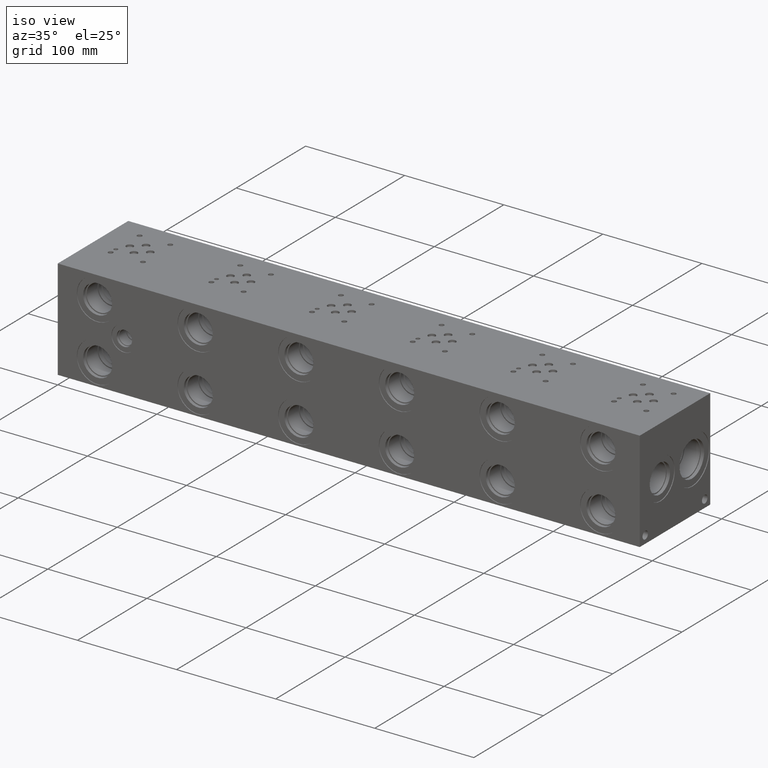
[diagram: clean part render]
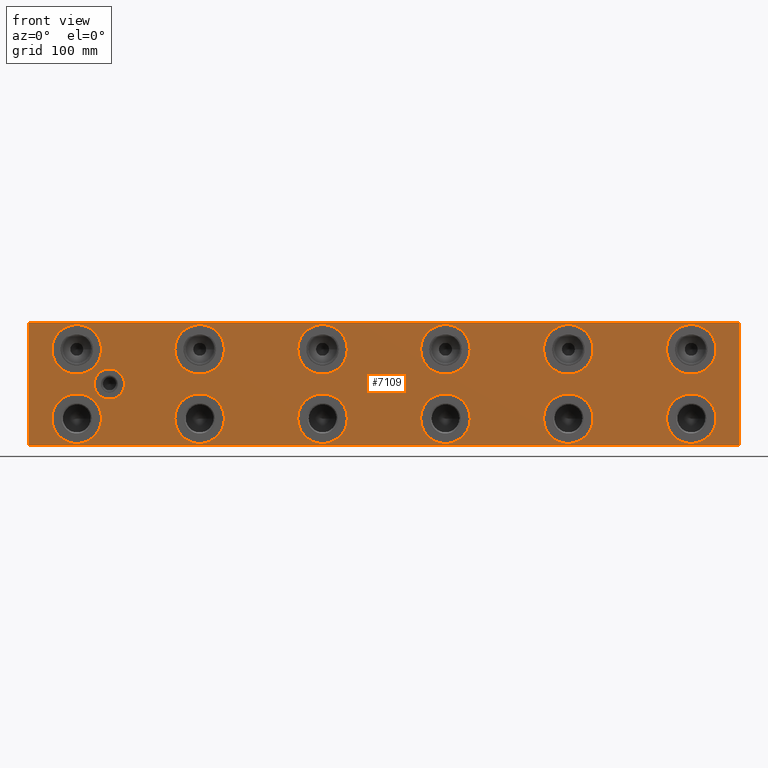
[diagram: tour spotlight — one face highlighted and labeled with its STEP entity id]
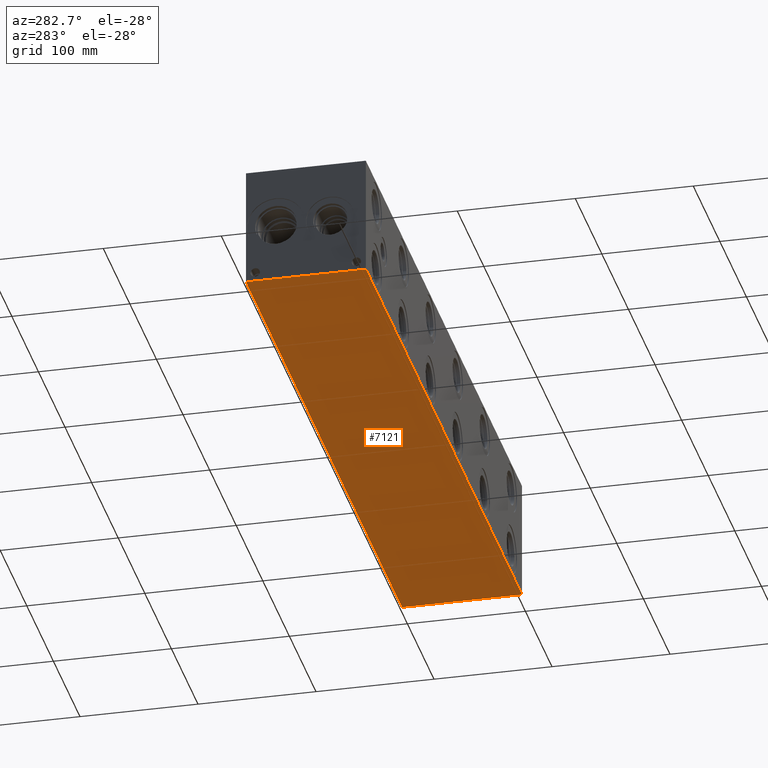
[diagram: tour spotlight — one face highlighted and labeled with its STEP entity id]
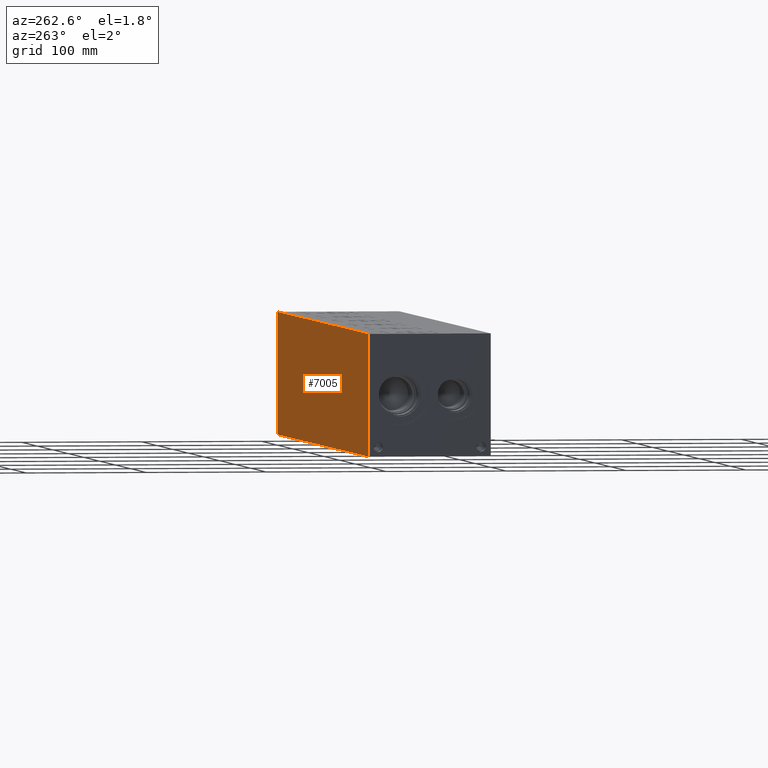
[diagram: tour spotlight — one face highlighted and labeled with its STEP entity id]
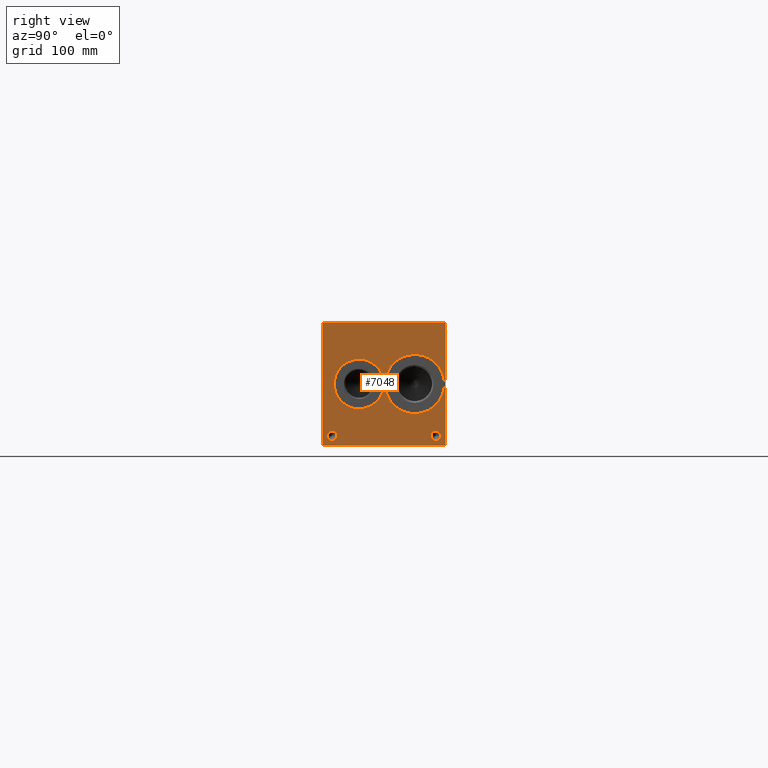
[diagram: tour spotlight — one face highlighted and labeled with its STEP entity id]
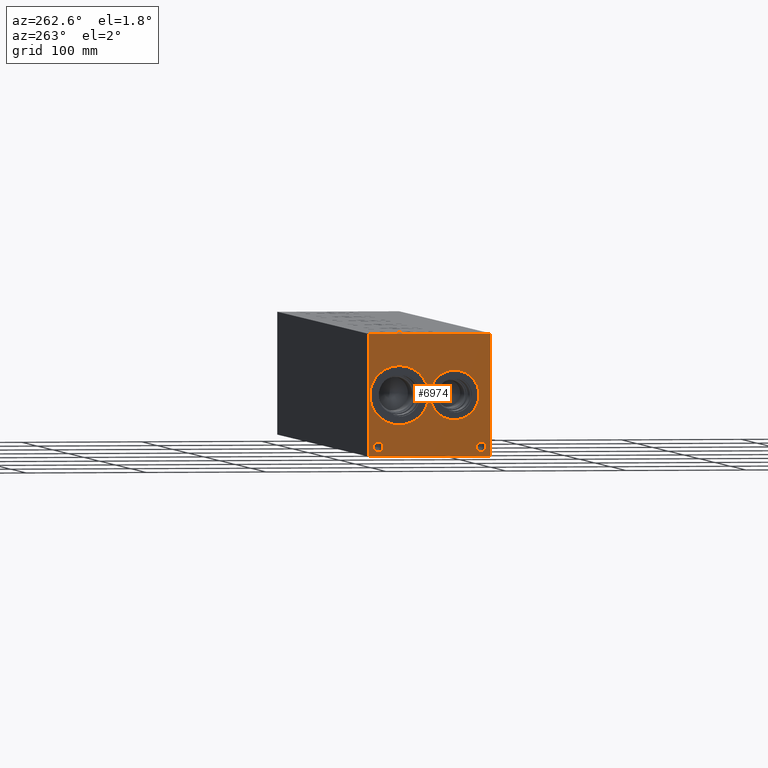
[diagram: tour spotlight — one face highlighted and labeled with its STEP entity id]
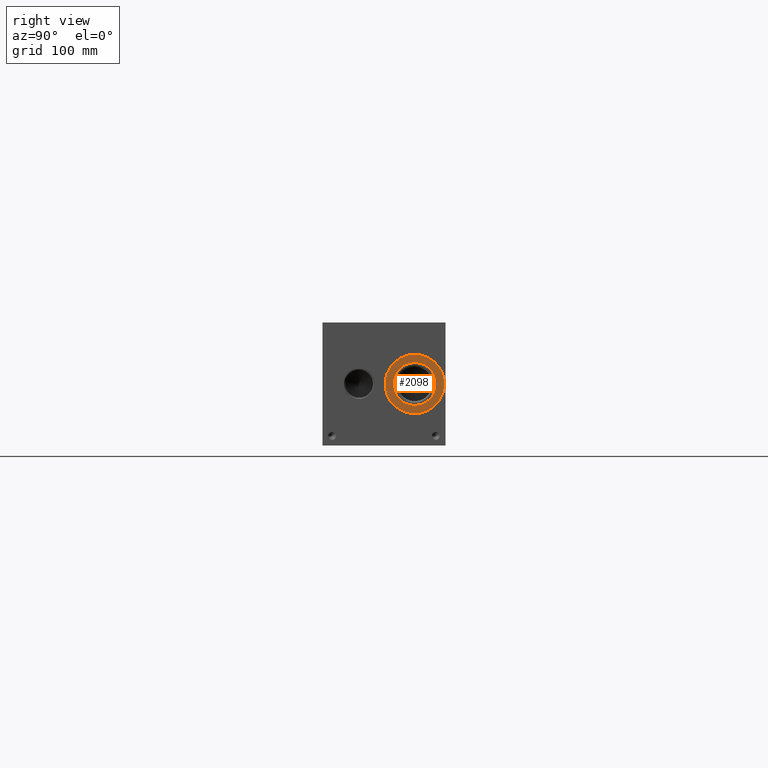
[diagram: tour spotlight — one face highlighted and labeled with its STEP entity id]
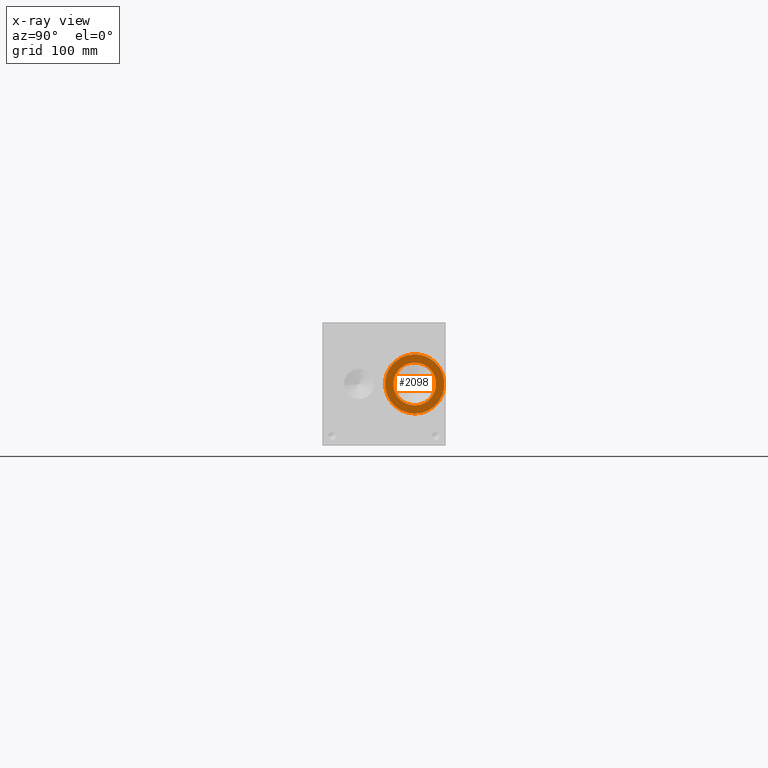
[diagram: x-ray of the same camera — body ghosted, this tour face saturated]
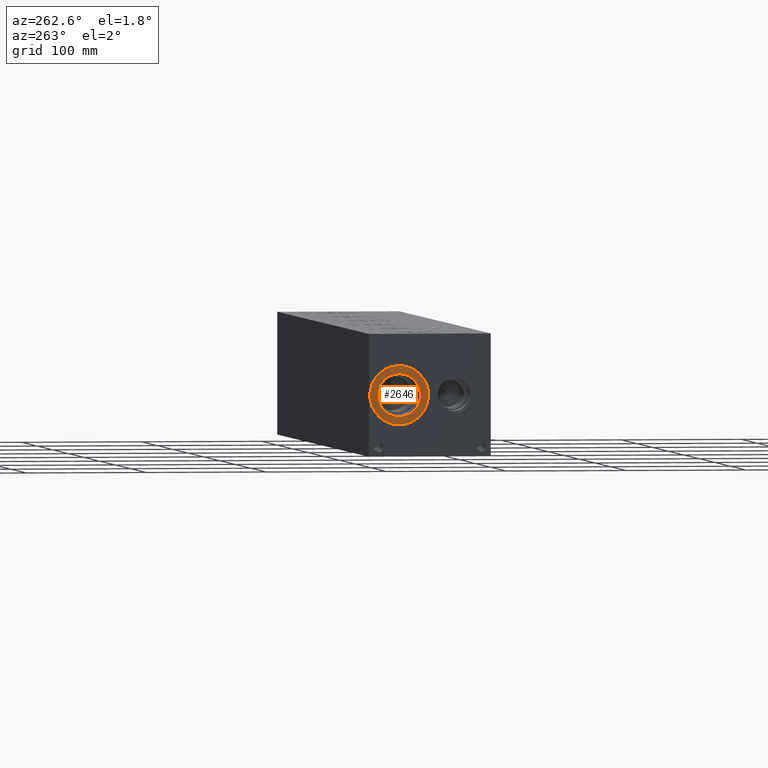
[diagram: tour spotlight — one face highlighted and labeled with its STEP entity id]
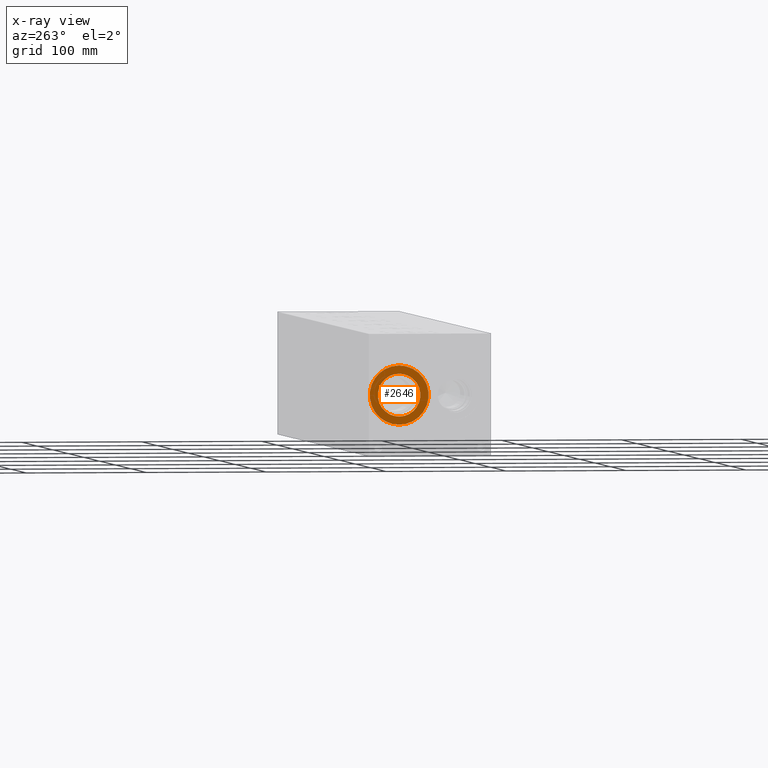
[diagram: x-ray of the same camera — body ghosted, this tour face saturated]
A machine part: a face-by-face anatomy tour. The part has 360 B-rep faces; the first image is the clean iso view, then the 7 largest visible faces are spotlighted one at a time (largest first), each with its STEP entity span.

Face 1 — front view, entity #7109. In plain terms, the highlighted planar face has unit normal (0, -1, 0).
Definition (entity closure, byte-faithful):
#250=CARTESIAN_POINT('',(568.1726000000001,0.0,22.225000000000001));
#251=VERTEX_POINT('',#250);
#252=CARTESIAN_POINT('',(547.6748,0.0,22.225000000000001));
#253=DIRECTION('',(0.0,1.0,0.0));
#254=DIRECTION('',(1.0,0.0,0.0));
#255=AXIS2_PLACEMENT_3D('',#252,#253,#254);
#256=CIRCLE('',#255,20.497799999999984);
#257=EDGE_CURVE('',#251,#251,#256,.T.);
#487=CARTESIAN_POINT('',(568.1726000000001,0.0,79.375));
#488=VERTEX_POINT('',#487);
#489=CARTESIAN_POINT('',(547.6748,0.0,79.375));
#490=DIRECTION('',(0.0,1.0,0.0));
#491=DIRECTION('',(1.0,0.0,0.0));
#492=AXIS2_PLACEMENT_3D('',#489,#490,#491);
#493=CIRCLE('',#492,20.497799999999984);
#494=EDGE_CURVE('',#488,#488,#493,.T.);
#1177=CARTESIAN_POINT('',(466.57260000000002,0.0,22.225000000000001));
#1178=VERTEX_POINT('',#1177);
#1179=CARTESIAN_POINT('',(446.07480000000004,0.0,22.225000000000001));
#1180=DIRECTION('',(0.0,1.0,0.0));
#1181=DIRECTION('',(1.0,0.0,0.0));
#1182=AXIS2_PLACEMENT_3D('',#1179,#1180,#1181);
#1183=CIRCLE('',#1182,20.497799999999984);
#1184=EDGE_CURVE('',#1178,#1178,#1183,.T.);
#1414=CARTESIAN_POINT('',(466.57260000000002,0.0,79.375));
#1415=VERTEX_POINT('',#1414);
#1416=CARTESIAN_POINT('',(446.07480000000004,0.0,79.375));
#1417=DIRECTION('',(0.0,1.0,0.0));
#1418=DIRECTION('',(1.0,0.0,0.0));
#1419=AXIS2_PLACEMENT_3D('',#1416,#1417,#1418);
#1420=CIRCLE('',#1419,20.497799999999984);
#1421=EDGE_CURVE('',#1415,#1415,#1420,.T.);
#3200=CARTESIAN_POINT('',(364.97260000000006,0.0,22.225000000000001));
#3201=VERTEX_POINT('',#3200);
#3202=CARTESIAN_POINT('',(344.47480000000007,0.0,22.225000000000001));
#3203=DIRECTION('',(0.0,1.0,0.0));
#3204=DIRECTION('',(1.0,0.0,0.0));
#3205=AXIS2_PLACEMENT_3D('',#3202,#3203,#3204);
#3206=CIRCLE('',#3205,20.497799999999984);
#3207=EDGE_CURVE('',#3201,#3201,#3206,.T.);
#3397=CARTESIAN_POINT('',(263.37260000000003,0.0,22.225000000000001));
#3398=VERTEX_POINT('',#3397);
#3399=CARTESIAN_POINT('',(242.87480000000002,0.0,22.225000000000001));
#3400=DIRECTION('',(0.0,1.0,0.0));
#3401=DIRECTION('',(1.0,0.0,0.0));
#3402=AXIS2_PLACEMENT_3D('',#3399,#3400,#3401);
#3403=CIRCLE('',#3402,20.497799999999984);
#3404=EDGE_CURVE('',#3398,#3398,#3403,.T.);
#3594=CARTESIAN_POINT('',(161.77260000000001,0.0,22.225000000000001));
#3595=VERTEX_POINT('',#3594);
#3596=CARTESIAN_POINT('',(141.2748,0.0,22.225000000000001));
#3597=DIRECTION('',(0.0,1.0,0.0));
#3598=DIRECTION('',(1.0,0.0,0.0));
#3599=AXIS2_PLACEMENT_3D('',#3596,#3597,#3598);
#3600=CIRCLE('',#3599,20.497800000000002);
#3601=EDGE_CURVE('',#3595,#3595,#3600,.T.);
#3791=CARTESIAN_POINT('',(60.172600000000003,0.0,22.225000000000001));
#3792=VERTEX_POINT('',#3791);
#3793=CARTESIAN_POINT('',(39.674800000000005,0.0,22.225000000000001));
#3794=DIRECTION('',(0.0,1.0,0.0));
#3795=DIRECTION('',(1.0,0.0,0.0));
#3796=AXIS2_PLACEMENT_3D('',#3793,#3794,#3795);
#3797=CIRCLE('',#3796,20.497800000000002);
#3798=EDGE_CURVE('',#3792,#3792,#3797,.T.);
#4028=CARTESIAN_POINT('',(364.97260000000006,0.0,79.375));
#4029=VERTEX_POINT('',#4028);
#4030=CARTESIAN_POINT('',(344.47480000000007,0.0,79.375));
#4031=DIRECTION('',(0.0,1.0,0.0));
#4032=DIRECTION('',(1.0,0.0,0.0));
#4033=AXIS2_PLACEMENT_3D('',#4030,#4031,#4032);
#4034=CIRCLE('',#4033,20.497799999999984);
#4035=EDGE_CURVE('',#4029,#4029,#4034,.T.);
#4265=CARTESIAN_POINT('',(263.37260000000003,0.0,79.375));
#4266=VERTEX_POINT('',#4265);
#4267=CARTESIAN_POINT('',(242.87480000000002,0.0,79.375));
#4268=DIRECTION('',(0.0,1.0,0.0));
#4269=DIRECTION('',(1.0,0.0,0.0));
#4270=AXIS2_PLACEMENT_3D('',#4267,#4268,#4269);
#4271=CIRCLE('',#4270,20.497799999999984);
#4272=EDGE_CURVE('',#4266,#4266,#4271,.T.);
#4502=CARTESIAN_POINT('',(161.77260000000001,0.0,79.375));
#4503=VERTEX_POINT('',#4502);
#4504=CARTESIAN_POINT('',(141.2748,0.0,79.375));
#4505=DIRECTION('',(0.0,1.0,0.0));
#4506=DIRECTION('',(1.0,0.0,0.0));
#4507=AXIS2_PLACEMENT_3D('',#4504,#4505,#4506);
#4508=CIRCLE('',#4507,20.497800000000002);
#4509=EDGE_CURVE('',#4503,#4503,#4508,.T.);
#4699=CARTESIAN_POINT('',(79.171800000000005,0.0,50.799999999999997));
#4700=VERTEX_POINT('',#4699);
#4701=CARTESIAN_POINT('',(66.675000000000011,0.0,50.799999999999997));
#4702=DIRECTION('',(0.0,1.0,0.0));
#4703=DIRECTION('',(1.0,0.0,0.0));
#4704=AXIS2_PLACEMENT_3D('',#4701,#4702,#4703);
#4705=CIRCLE('',#4704,12.496799999999997);
#4706=EDGE_CURVE('',#4700,#4700,#4705,.T.);
#4936=CARTESIAN_POINT('',(60.172600000000003,0.0,79.375));
#4937=VERTEX_POINT('',#4936);
#4938=CARTESIAN_POINT('',(39.674800000000005,0.0,79.375));
#4939=DIRECTION('',(0.0,1.0,0.0));
#4940=DIRECTION('',(1.0,0.0,0.0));
#4941=AXIS2_PLACEMENT_3D('',#4938,#4939,#4940);
#4942=CIRCLE('',#4941,20.497800000000002);
#4943=EDGE_CURVE('',#4937,#4937,#4942,.T.);
#6928=CARTESIAN_POINT('',(0.0,0.0,101.59999999999999));
#6929=VERTEX_POINT('',#6928);
#6946=CARTESIAN_POINT('',(0.0,0.0,0.0));
#6947=VERTEX_POINT('',#6946);
#6954=CARTESIAN_POINT('',(0.0,0.0,0.0));
#6955=DIRECTION('',(0.0,0.0,1.0));
#6956=VECTOR('',#6955,101.59999999999999);
#6957=LINE('',#6954,#6956);
#6958=EDGE_CURVE('',#6947,#6929,#6957,.T.);
#7011=CARTESIAN_POINT('',(587.375,0.0,101.59999999999999));
#7012=VERTEX_POINT('',#7011);
#7019=CARTESIAN_POINT('',(587.375,0.0,0.0));
#7020=VERTEX_POINT('',#7019);
#7021=CARTESIAN_POINT('',(587.375,0.0,0.0));
#7022=DIRECTION('',(0.0,0.0,1.0));
#7023=VECTOR('',#7022,101.59999999999999);
#7024=LINE('',#7021,#7023);
#7025=EDGE_CURVE('',#7020,#7012,#7024,.T.);
#7049=CARTESIAN_POINT('',(587.375,0.0,0.0));
#7050=DIRECTION('',(0.0,-1.0,0.0));
#7051=DIRECTION('',(0.0,0.0,-1.0));
#7052=AXIS2_PLACEMENT_3D('',#7049,#7050,#7051);
#7053=PLANE('',#7052);
#7054=CARTESIAN_POINT('',(587.375,0.0,101.59999999999999));
#7055=DIRECTION('',(-1.0,0.0,0.0));
#7056=VECTOR('',#7055,587.375);
#7057=LINE('',#7054,#7056);
#7058=EDGE_CURVE('',#7012,#6929,#7057,.T.);
#7059=ORIENTED_EDGE('',*,*,#7058,.T.);
#7060=ORIENTED_EDGE('',*,*,#6958,.F.);
#7061=CARTESIAN_POINT('',(0.0,0.0,0.0));
#7062=DIRECTION('',(1.0,0.0,0.0));
#7063=VECTOR('',#7062,587.375);
#7064=LINE('',#7061,#7063);
#7065=EDGE_CURVE('',#6947,#7020,#7064,.T.);
#7066=ORIENTED_EDGE('',*,*,#7065,.T.);
#7067=ORIENTED_EDGE('',*,*,#7025,.T.);
#7068=EDGE_LOOP('',(#7059,#7060,#7066,#7067));
#7069=FACE_OUTER_BOUND('',#7068,.T.);
#7070=ORIENTED_EDGE('',*,*,#257,.T.);
#7071=EDGE_LOOP('',(#7070));
#7072=FACE_BOUND('',#7071,.T.);
#7073=ORIENTED_EDGE('',*,*,#494,.T.);
#7074=EDGE_LOOP('',(#7073));
#7075=FACE_BOUND('',#7074,.T.);
#7076=ORIENTED_EDGE('',*,*,#1184,.T.);
#7077=EDGE_LOOP('',(#7076));
#7078=FACE_BOUND('',#7077,.T.);
#7079=ORIENTED_EDGE('',*,*,#1421,.T.);
#7080=EDGE_LOOP('',(#7079));
#7081=FACE_BOUND('',#7080,.T.);
#7082=ORIENTED_EDGE('',*,*,#3207,.T.);
#7083=EDGE_LOOP('',(#7082));
#7084=FACE_BOUND('',#7083,.T.);
#7085=ORIENTED_EDGE('',*,*,#3404,.T.);
#7086=EDGE_LOOP('',(#7085));
#7087=FACE_BOUND('',#7086,.T.);
#7088=ORIENTED_EDGE('',*,*,#3601,.T.);
#7089=EDGE_LOOP('',(#7088));
#7090=FACE_BOUND('',#7089,.T.);
#7091=ORIENTED_EDGE('',*,*,#3798,.T.);
#7092=EDGE_LOOP('',(#7091));
#7093=FACE_BOUND('',#7092,.T.);
#7094=ORIENTED_EDGE('',*,*,#4035,.T.);
#7095=EDGE_LOOP('',(#7094));
#7096=FACE_BOUND('',#7095,.T.);
#7097=ORIENTED_EDGE('',*,*,#4272,.T.);
#7098=EDGE_LOOP('',(#7097));
#7099=FACE_BOUND('',#7098,.T.);
#7100=ORIENTED_EDGE('',*,*,#4509,.T.);
#7101=EDGE_LOOP('',(#7100));
#7102=FACE_BOUND('',#7101,.T.);
#7103=ORIENTED_EDGE('',*,*,#4706,.T.);
#7104=EDGE_LOOP('',(#7103));
#7105=FACE_BOUND('',#7104,.T.);
#7106=ORIENTED_EDGE('',*,*,#4943,.T.);
#7107=EDGE_LOOP('',(#7106));
#7108=FACE_BOUND('',#7107,.T.);
#7109=ADVANCED_FACE('',(#7069,#7072,#7075,#7078,#7081,#7084,#7087,#7090,#7093,#7096,#7099,#7102,#7105,#7108),#7053,.T.);

Face 2 — auxiliary view, entity #7121. In plain terms, the highlighted planar face has unit normal (0, 0, 1).
Definition (entity closure, byte-faithful):
#6938=CARTESIAN_POINT('',(0.0,101.59999999999999,0.0));
#6939=VERTEX_POINT('',#6938);
#6946=CARTESIAN_POINT('',(0.0,0.0,0.0));
#6947=VERTEX_POINT('',#6946);
#6948=CARTESIAN_POINT('',(0.0,101.59999999999999,0.0));
#6949=DIRECTION('',(0.0,-1.0,0.0));
#6950=VECTOR('',#6949,101.59999999999999);
#6951=LINE('',#6948,#6950);
#6952=EDGE_CURVE('',#6939,#6947,#6951,.T.);
#6988=CARTESIAN_POINT('',(587.375,101.59999999999999,0.0));
#6989=VERTEX_POINT('',#6988);
#6996=CARTESIAN_POINT('',(587.375,101.59999999999999,0.0));
#6997=DIRECTION('',(-1.0,0.0,0.0));
#6998=VECTOR('',#6997,587.375);
#6999=LINE('',#6996,#6998);
#7000=EDGE_CURVE('',#6989,#6939,#6999,.T.);
#7019=CARTESIAN_POINT('',(587.375,0.0,0.0));
#7020=VERTEX_POINT('',#7019);
#7027=CARTESIAN_POINT('',(587.375,0.0,0.0));
#7028=DIRECTION('',(0.0,1.0,0.0));
#7029=VECTOR('',#7028,101.59999999999999);
#7030=LINE('',#7027,#7029);
#7031=EDGE_CURVE('',#7020,#6989,#7030,.T.);
#7061=CARTESIAN_POINT('',(0.0,0.0,0.0));
#7062=DIRECTION('',(1.0,0.0,0.0));
#7063=VECTOR('',#7062,587.375);
#7064=LINE('',#7061,#7063);
#7065=EDGE_CURVE('',#6947,#7020,#7064,.T.);
#7110=CARTESIAN_POINT('',(293.68750000000006,50.799999999999983,0.0));
#7111=DIRECTION('',(0.0,0.0,1.0));
#7112=DIRECTION('',(1.0,0.0,0.0));
#7113=AXIS2_PLACEMENT_3D('',#7110,#7111,#7112);
#7114=PLANE('',#7113);
#7115=ORIENTED_EDGE('',*,*,#7065,.F.);
#7116=ORIENTED_EDGE('',*,*,#6952,.F.);
#7117=ORIENTED_EDGE('',*,*,#7000,.F.);
#7118=ORIENTED_EDGE('',*,*,#7031,.F.);
#7119=EDGE_LOOP('',(#7115,#7116,#7117,#7118));
#7120=FACE_OUTER_BOUND('',#7119,.T.);
#7121=ADVANCED_FACE('',(#7120),#7114,.F.);

Face 3 — auxiliary view, entity #7005. In plain terms, the highlighted planar face has unit normal (0, 1, 0).
Definition (entity closure, byte-faithful):
#6930=CARTESIAN_POINT('',(0.0,101.59999999999999,101.59999999999999));
#6931=VERTEX_POINT('',#6930);
#6938=CARTESIAN_POINT('',(0.0,101.59999999999999,0.0));
#6939=VERTEX_POINT('',#6938);
#6940=CARTESIAN_POINT('',(0.0,101.59999999999999,0.0));
#6941=DIRECTION('',(0.0,0.0,1.0));
#6942=VECTOR('',#6941,101.59999999999999);
#6943=LINE('',#6940,#6942);
#6944=EDGE_CURVE('',#6939,#6931,#6943,.T.);
#6975=CARTESIAN_POINT('',(0.0,101.59999999999999,0.0));
#6976=DIRECTION('',(0.0,1.0,0.0));
#6977=DIRECTION('',(0.0,0.0,1.0));
#6978=AXIS2_PLACEMENT_3D('',#6975,#6976,#6977);
#6979=PLANE('',#6978);
#6980=CARTESIAN_POINT('',(587.375,101.59999999999999,101.59999999999999));
#6981=VERTEX_POINT('',#6980);
#6982=CARTESIAN_POINT('',(0.0,101.59999999999999,101.59999999999999));
#6983=DIRECTION('',(1.0,0.0,0.0));
#6984=VECTOR('',#6983,587.375);
#6985=LINE('',#6982,#6984);
#6986=EDGE_CURVE('',#6931,#6981,#6985,.T.);
#6987=ORIENTED_EDGE('',*,*,#6986,.T.);
#6988=CARTESIAN_POINT('',(587.375,101.59999999999999,0.0));
#6989=VERTEX_POINT('',#6988);
#6990=CARTESIAN_POINT('',(587.375,101.59999999999999,0.0));
#6991=DIRECTION('',(0.0,0.0,1.0));
#6992=VECTOR('',#6991,101.59999999999999);
#6993=LINE('',#6990,#6992);
#6994=EDGE_CURVE('',#6989,#6981,#6993,.T.);
#6995=ORIENTED_EDGE('',*,*,#6994,.F.);
#6996=CARTESIAN_POINT('',(587.375,101.59999999999999,0.0));
#6997=DIRECTION('',(-1.0,0.0,0.0));
#6998=VECTOR('',#6997,587.375);
#6999=LINE('',#6996,#6998);
#7000=EDGE_CURVE('',#6989,#6939,#6999,.T.);
#7001=ORIENTED_EDGE('',*,*,#7000,.T.);
#7002=ORIENTED_EDGE('',*,*,#6944,.T.);
#7003=EDGE_LOOP('',(#6987,#6995,#7001,#7002));
#7004=FACE_OUTER_BOUND('',#7003,.T.);
#7005=ADVANCED_FACE('',(#7004),#6979,.T.);

Face 4 — right view, entity #7048. In plain terms, the highlighted planar face has unit normal (1, 0, 0).
Definition (entity closure, byte-faithful):
#2104=CARTESIAN_POINT('',(587.375,76.200000000000017,26.301699999999997));
#2105=VERTEX_POINT('',#2104);
#2106=CARTESIAN_POINT('',(587.375,76.200000000000017,50.799999999999997));
#2107=DIRECTION('',(-1.0,0.0,0.0));
#2108=DIRECTION('',(0.0,0.0,-1.0));
#2109=AXIS2_PLACEMENT_3D('',#2106,#2107,#2108);
#2110=CIRCLE('',#2109,24.498300000000004);
#2111=EDGE_CURVE('',#2105,#2105,#2110,.T.);
#2301=CARTESIAN_POINT('',(587.375,30.175200000000004,30.302199999999999));
#2302=VERTEX_POINT('',#2301);
#2303=CARTESIAN_POINT('',(587.375,30.175200000000004,50.799999999999997));
#2304=DIRECTION('',(-1.0,0.0,0.0));
#2305=DIRECTION('',(0.0,0.0,-1.0));
#2306=AXIS2_PLACEMENT_3D('',#2303,#2304,#2305);
#2307=CIRCLE('',#2306,20.497800000000002);
#2308=EDGE_CURVE('',#2302,#2302,#2307,.T.);
#2378=CARTESIAN_POINT('',(587.375,93.675200000000004,3.9497));
#2379=VERTEX_POINT('',#2378);
#2380=CARTESIAN_POINT('',(587.375,93.675200000000004,7.924800000000001));
#2381=DIRECTION('',(-1.0,0.0,0.0));
#2382=DIRECTION('',(0.0,0.0,-1.0));
#2383=AXIS2_PLACEMENT_3D('',#2380,#2381,#2382);
#2384=CIRCLE('',#2383,3.9751);
#2385=EDGE_CURVE('',#2379,#2379,#2384,.T.);
#2455=CARTESIAN_POINT('',(587.375,7.924800000000001,3.9497));
#2456=VERTEX_POINT('',#2455);
#2457=CARTESIAN_POINT('',(587.375,7.924800000000001,7.924800000000001));
#2458=DIRECTION('',(-1.0,0.0,0.0));
#2459=DIRECTION('',(0.0,0.0,-1.0));
#2460=AXIS2_PLACEMENT_3D('',#2457,#2458,#2459);
#2461=CIRCLE('',#2460,3.9751);
#2462=EDGE_CURVE('',#2456,#2456,#2461,.T.);
#6980=CARTESIAN_POINT('',(587.375,101.59999999999999,101.59999999999999));
#6981=VERTEX_POINT('',#6980);
#6988=CARTESIAN_POINT('',(587.375,101.59999999999999,0.0));
#6989=VERTEX_POINT('',#6988);
#6990=CARTESIAN_POINT('',(587.375,101.59999999999999,0.0));
#6991=DIRECTION('',(0.0,0.0,1.0));
#6992=VECTOR('',#6991,101.59999999999999);
#6993=LINE('',#6990,#6992);
#6994=EDGE_CURVE('',#6989,#6981,#6993,.T.);
#7006=CARTESIAN_POINT('',(587.375,101.59999999999999,0.0));
#7007=DIRECTION('',(1.0,0.0,0.0));
#7008=DIRECTION('',(0.0,0.0,-1.0));
#7009=AXIS2_PLACEMENT_3D('',#7006,#7007,#7008);
#7010=PLANE('',#7009);
#7011=CARTESIAN_POINT('',(587.375,0.0,101.59999999999999));
#7012=VERTEX_POINT('',#7011);
#7013=CARTESIAN_POINT('',(587.375,101.59999999999999,101.59999999999999));
#7014=DIRECTION('',(0.0,-1.0,0.0));
#7015=VECTOR('',#7014,101.59999999999999);
#7016=LINE('',#7013,#7015);
#7017=EDGE_CURVE('',#6981,#7012,#7016,.T.);
#7018=ORIENTED_EDGE('',*,*,#7017,.T.);
#7019=CARTESIAN_POINT('',(587.375,0.0,0.0));
#7020=VERTEX_POINT('',#7019);
#7021=CARTESIAN_POINT('',(587.375,0.0,0.0));
#7022=DIRECTION('',(0.0,0.0,1.0));
#7023=VECTOR('',#7022,101.59999999999999);
#7024=LINE('',#7021,#7023);
#7025=EDGE_CURVE('',#7020,#7012,#7024,.T.);
#7026=ORIENTED_EDGE('',*,*,#7025,.F.);
#7027=CARTESIAN_POINT('',(587.375,0.0,0.0));
#7028=DIRECTION('',(0.0,1.0,0.0));
#7029=VECTOR('',#7028,101.59999999999999);
#7030=LINE('',#7027,#7029);
#7031=EDGE_CURVE('',#7020,#6989,#7030,.T.);
#7032=ORIENTED_EDGE('',*,*,#7031,.T.);
#7033=ORIENTED_EDGE('',*,*,#6994,.T.);
#7034=EDGE_LOOP('',(#7018,#7026,#7032,#7033));
#7035=FACE_OUTER_BOUND('',#7034,.T.);
#7036=ORIENTED_EDGE('',*,*,#2111,.T.);
#7037=EDGE_LOOP('',(#7036));
#7038=FACE_BOUND('',#7037,.T.);
#7039=ORIENTED_EDGE('',*,*,#2308,.T.);
#7040=EDGE_LOOP('',(#7039));
#7041=FACE_BOUND('',#7040,.T.);
#7042=ORIENTED_EDGE('',*,*,#2385,.T.);
#7043=EDGE_LOOP('',(#7042));
#7044=FACE_BOUND('',#7043,.T.);
#7045=ORIENTED_EDGE('',*,*,#2462,.T.);
#7046=EDGE_LOOP('',(#7045));
#7047=FACE_BOUND('',#7046,.T.);
#7048=ADVANCED_FACE('',(#7035,#7038,#7041,#7044,#7047),#7010,.T.);

Face 5 — auxiliary view, entity #6974. In plain terms, the highlighted planar face has unit normal (-1, 0, 0).
Definition (entity closure, byte-faithful):
#2652=CARTESIAN_POINT('',(0.0,76.200000000000017,75.298300000000012));
#2653=VERTEX_POINT('',#2652);
#2654=CARTESIAN_POINT('',(0.0,76.200000000000017,50.799999999999997));
#2655=DIRECTION('',(1.0,0.0,0.0));
#2656=DIRECTION('',(0.0,0.0,1.0));
#2657=AXIS2_PLACEMENT_3D('',#2654,#2655,#2656);
#2658=CIRCLE('',#2657,24.498300000000004);
#2659=EDGE_CURVE('',#2653,#2653,#2658,.T.);
#2849=CARTESIAN_POINT('',(0.0,30.175200000000004,71.297799999999995));
#2850=VERTEX_POINT('',#2849);
#2851=CARTESIAN_POINT('',(0.0,30.175200000000004,50.799999999999997));
#2852=DIRECTION('',(1.0,0.0,0.0));
#2853=DIRECTION('',(0.0,0.0,1.0));
#2854=AXIS2_PLACEMENT_3D('',#2851,#2852,#2853);
#2855=CIRCLE('',#2854,20.497800000000002);
#2856=EDGE_CURVE('',#2850,#2850,#2855,.T.);
#2926=CARTESIAN_POINT('',(0.0,93.675200000000004,11.899900000000001));
#2927=VERTEX_POINT('',#2926);
#2928=CARTESIAN_POINT('',(0.0,93.675200000000004,7.924800000000001));
#2929=DIRECTION('',(1.0,0.0,0.0));
#2930=DIRECTION('',(0.0,0.0,1.0));
#2931=AXIS2_PLACEMENT_3D('',#2928,#2929,#2930);
#2932=CIRCLE('',#2931,3.9751);
#2933=EDGE_CURVE('',#2927,#2927,#2932,.T.);
#3003=CARTESIAN_POINT('',(0.0,7.924800000000001,11.899900000000001));
#3004=VERTEX_POINT('',#3003);
#3005=CARTESIAN_POINT('',(0.0,7.924800000000001,7.924800000000001));
#3006=DIRECTION('',(1.0,0.0,0.0));
#3007=DIRECTION('',(0.0,0.0,1.0));
#3008=AXIS2_PLACEMENT_3D('',#3005,#3006,#3007);
#3009=CIRCLE('',#3008,3.9751);
#3010=EDGE_CURVE('',#3004,#3004,#3009,.T.);
#6923=CARTESIAN_POINT('',(0.0,0.0,0.0));
#6924=DIRECTION('',(-1.0,0.0,0.0));
#6925=DIRECTION('',(0.0,0.0,1.0));
#6926=AXIS2_PLACEMENT_3D('',#6923,#6924,#6925);
#6927=PLANE('',#6926);
#6928=CARTESIAN_POINT('',(0.0,0.0,101.59999999999999));
#6929=VERTEX_POINT('',#6928);
#6930=CARTESIAN_POINT('',(0.0,101.59999999999999,101.59999999999999));
#6931=VERTEX_POINT('',#6930);
#6932=CARTESIAN_POINT('',(0.0,0.0,101.59999999999999));
#6933=DIRECTION('',(0.0,1.0,0.0));
#6934=VECTOR('',#6933,101.59999999999999);
#6935=LINE('',#6932,#6934);
#6936=EDGE_CURVE('',#6929,#6931,#6935,.T.);
#6937=ORIENTED_EDGE('',*,*,#6936,.T.);
#6938=CARTESIAN_POINT('',(0.0,101.59999999999999,0.0));
#6939=VERTEX_POINT('',#6938);
#6940=CARTESIAN_POINT('',(0.0,101.59999999999999,0.0));
#6941=DIRECTION('',(0.0,0.0,1.0));
#6942=VECTOR('',#6941,101.59999999999999);
#6943=LINE('',#6940,#6942);
#6944=EDGE_CURVE('',#6939,#6931,#6943,.T.);
#6945=ORIENTED_EDGE('',*,*,#6944,.F.);
#6946=CARTESIAN_POINT('',(0.0,0.0,0.0));
#6947=VERTEX_POINT('',#6946);
#6948=CARTESIAN_POINT('',(0.0,101.59999999999999,0.0));
#6949=DIRECTION('',(0.0,-1.0,0.0));
#6950=VECTOR('',#6949,101.59999999999999);
#6951=LINE('',#6948,#6950);
#6952=EDGE_CURVE('',#6939,#6947,#6951,.T.);
#6953=ORIENTED_EDGE('',*,*,#6952,.T.);
#6954=CARTESIAN_POINT('',(0.0,0.0,0.0));
#6955=DIRECTION('',(0.0,0.0,1.0));
#6956=VECTOR('',#6955,101.59999999999999);
#6957=LINE('',#6954,#6956);
#6958=EDGE_CURVE('',#6947,#6929,#6957,.T.);
#6959=ORIENTED_EDGE('',*,*,#6958,.T.);
#6960=EDGE_LOOP('',(#6937,#6945,#6953,#6959));
#6961=FACE_OUTER_BOUND('',#6960,.T.);
#6962=ORIENTED_EDGE('',*,*,#2659,.T.);
#6963=EDGE_LOOP('',(#6962));
#6964=FACE_BOUND('',#6963,.T.);
#6965=ORIENTED_EDGE('',*,*,#2856,.T.);
#6966=EDGE_LOOP('',(#6965));
#6967=FACE_BOUND('',#6966,.T.);
#6968=ORIENTED_EDGE('',*,*,#2933,.T.);
#6969=EDGE_LOOP('',(#6968));
#6970=FACE_BOUND('',#6969,.T.);
#6971=ORIENTED_EDGE('',*,*,#3010,.T.);
#6972=EDGE_LOOP('',(#6971));
#6973=FACE_BOUND('',#6972,.T.);
#6974=ADVANCED_FACE('',(#6961,#6964,#6967,#6970,#6973),#6927,.T.);

Face 6 — right view, entity #2098. An x-ray twin of the same camera follows (body ghosted, this face saturated) — the face is partly hidden behind the body. In plain terms, the highlighted planar face has unit normal (-1, 0, 0).
Definition (entity closure, byte-faithful):
#2064=CARTESIAN_POINT('',(586.61300000000006,76.200000000000017,33.045400000000001));
#2065=VERTEX_POINT('',#2064);
#2066=CARTESIAN_POINT('',(586.61300000000006,76.200000000000017,50.799999999999997));
#2067=DIRECTION('',(1.0,0.0,0.0));
#2068=DIRECTION('',(0.0,0.0,-1.0));
#2069=AXIS2_PLACEMENT_3D('',#2066,#2067,#2068);
#2070=CIRCLE('',#2069,17.754599999999996);
#2071=EDGE_CURVE('',#2065,#2065,#2070,.T.);
#2079=CARTESIAN_POINT('',(586.61300000000006,76.200000000000017,29.673549999999999));
#2080=DIRECTION('',(-1.0,0.0,0.0));
#2081=DIRECTION('',(0.0,0.0,1.0));
#2082=AXIS2_PLACEMENT_3D('',#2079,#2080,#2081);
#2083=PLANE('',#2082);
#2084=CARTESIAN_POINT('',(586.61300000000006,76.200000000000017,26.301699999999997));
#2085=VERTEX_POINT('',#2084);
#2086=CARTESIAN_POINT('',(586.61300000000006,76.200000000000017,50.799999999999997));
#2087=DIRECTION('',(1.0,0.0,0.0));
#2088=DIRECTION('',(0.0,0.0,-1.0));
#2089=AXIS2_PLACEMENT_3D('',#2086,#2087,#2088);
#2090=CIRCLE('',#2089,24.498300000000004);
#2091=EDGE_CURVE('',#2085,#2085,#2090,.T.);
#2092=ORIENTED_EDGE('',*,*,#2091,.T.);
#2093=EDGE_LOOP('',(#2092));
#2094=FACE_OUTER_BOUND('',#2093,.T.);
#2095=ORIENTED_EDGE('',*,*,#2071,.F.);
#2096=EDGE_LOOP('',(#2095));
#2097=FACE_BOUND('',#2096,.T.);
#2098=ADVANCED_FACE('',(#2094,#2097),#2083,.F.);

Face 7 — auxiliary view, entity #2646. An x-ray twin of the same camera follows (body ghosted, this face saturated) — the face is partly hidden behind the body. In plain terms, the highlighted planar face has unit normal (1, 0, 0).
Definition (entity closure, byte-faithful):
#2612=CARTESIAN_POINT('',(0.762,76.200000000000017,68.554599999999994));
#2613=VERTEX_POINT('',#2612);
#2614=CARTESIAN_POINT('',(0.762,76.200000000000017,50.799999999999997));
#2615=DIRECTION('',(-1.0,0.0,0.0));
#2616=DIRECTION('',(0.0,0.0,1.0));
#2617=AXIS2_PLACEMENT_3D('',#2614,#2615,#2616);
#2618=CIRCLE('',#2617,17.754599999999996);
#2619=EDGE_CURVE('',#2613,#2613,#2618,.T.);
#2627=CARTESIAN_POINT('',(0.762,76.200000000000017,71.926450000000003));
#2628=DIRECTION('',(1.0,0.0,0.0));
#2629=DIRECTION('',(0.0,0.0,-1.0));
#2630=AXIS2_PLACEMENT_3D('',#2627,#2628,#2629);
#2631=PLANE('',#2630);
#2632=CARTESIAN_POINT('',(0.762,76.200000000000017,75.298300000000012));
#2633=VERTEX_POINT('',#2632);
#2634=CARTESIAN_POINT('',(0.762,76.200000000000017,50.799999999999997));
#2635=DIRECTION('',(-1.0,0.0,0.0));
#2636=DIRECTION('',(0.0,0.0,1.0));
#2637=AXIS2_PLACEMENT_3D('',#2634,#2635,#2636);
#2638=CIRCLE('',#2637,24.498300000000004);
#2639=EDGE_CURVE('',#2633,#2633,#2638,.T.);
#2640=ORIENTED_EDGE('',*,*,#2639,.T.);
#2641=EDGE_LOOP('',(#2640));
#2642=FACE_OUTER_BOUND('',#2641,.T.);
#2643=ORIENTED_EDGE('',*,*,#2619,.F.);
#2644=EDGE_LOOP('',(#2643));
#2645=FACE_BOUND('',#2644,.T.);
#2646=ADVANCED_FACE('',(#2642,#2645),#2631,.F.);